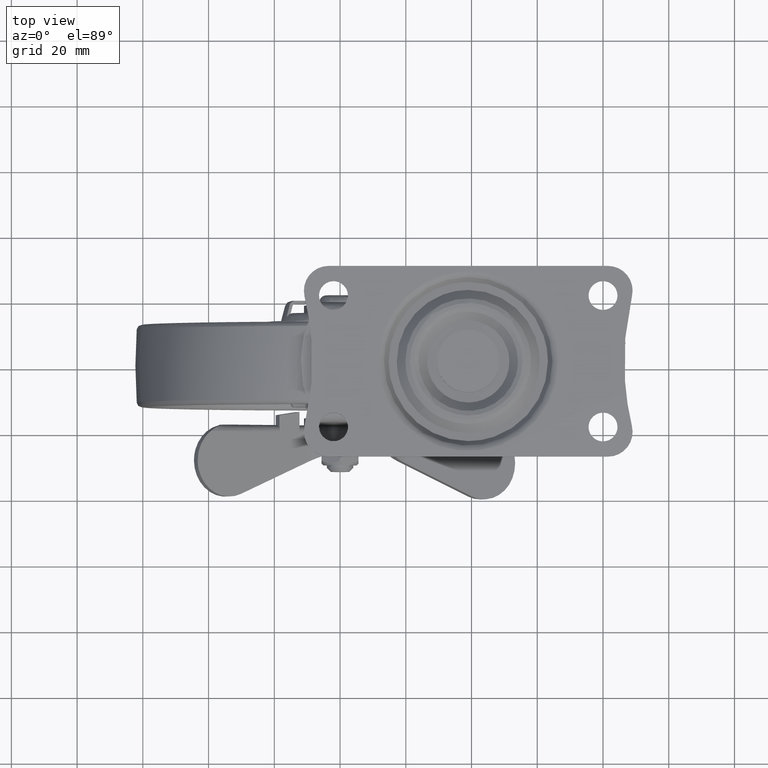
[diagram: clean part render]
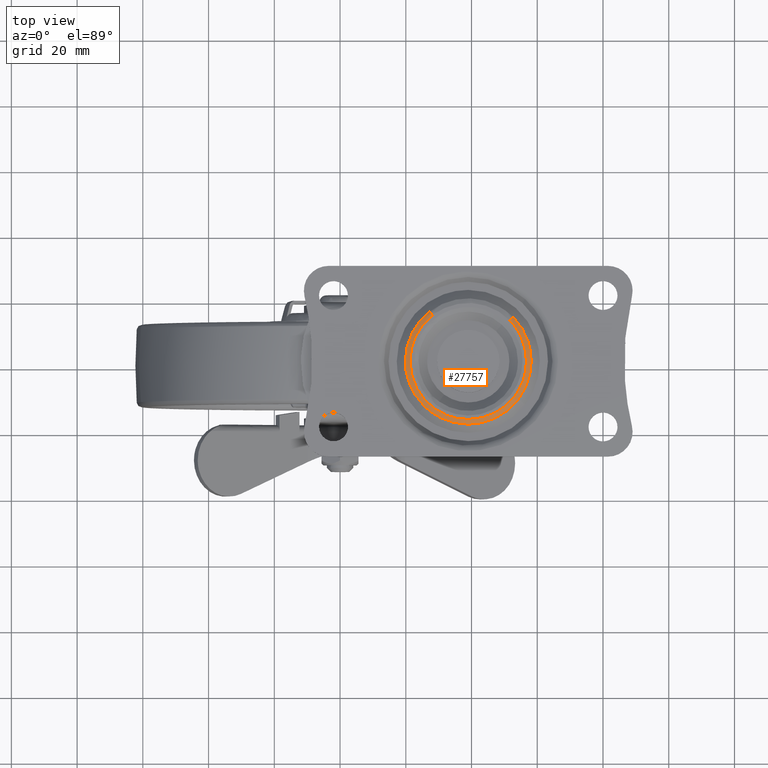
[diagram: same view with one face highlighted and labeled with its STEP entity id]
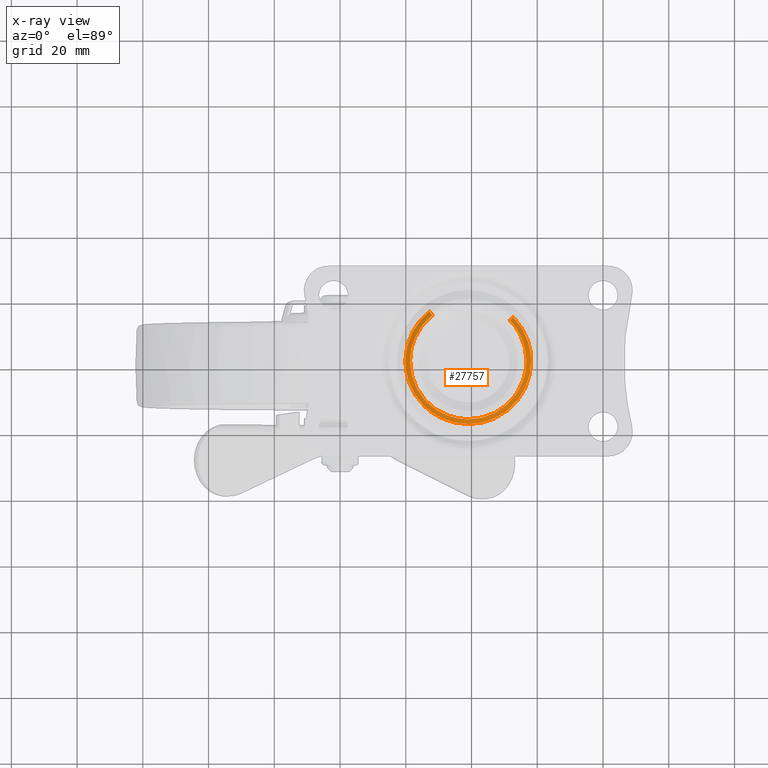
[diagram: x-ray of the same camera — body ghosted, the highlighted face saturated]
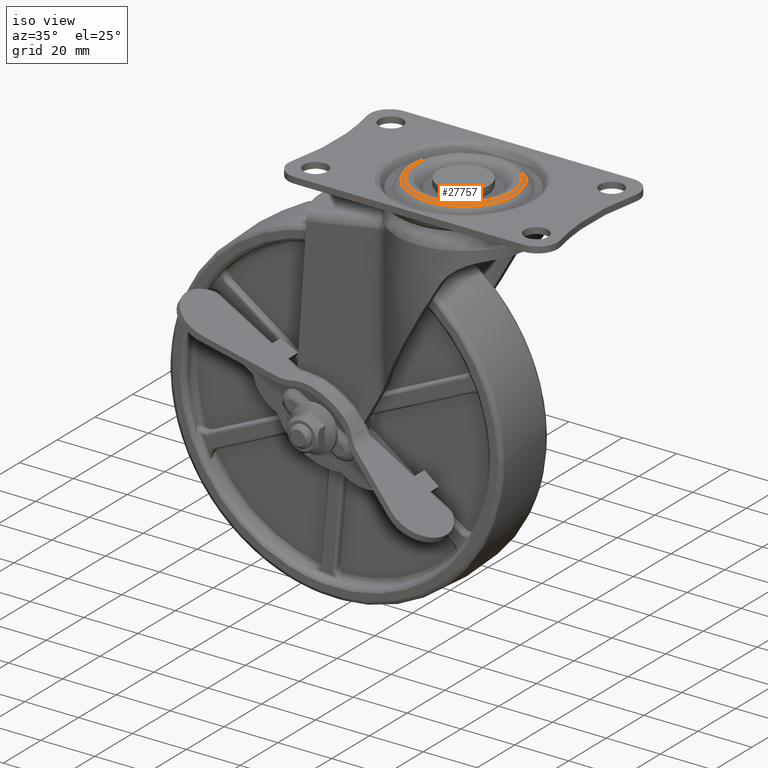
[diagram: same view with one face highlighted and labeled with its STEP entity id]
A machine part, top view. The second image highlights one B-rep face of the part: STEP entity #27757.
The next image is the same camera in x-ray: the body ghosted, the highlighted face saturated — about 0% of this face is hidden behind the body in this view.
A second angle (iso view) of the same face is appended — the face is thin or edge-on in the first view.
In plain terms, the highlighted face is a freeform B-spline surface patch.
Its self-contained STEP definition (entity closure, byte-faithful):
#21678=CARTESIAN_POINT('',(54.235827512268258,-11.577032608832861,84.914213838557146));
#21679=VERTEX_POINT('',#21678);
#21680=CARTESIAN_POINT('',(38.999997706684589,-19.135259489190961,84.914213562373206));
#21681=VERTEX_POINT('',#21680);
#21682=CARTESIAN_POINT('',(54.235827512268258,-11.577032608832861,84.914213838557146));
#21683=CARTESIAN_POINT('',(53.458493811959322,-12.600367417365280,84.914213824466117));
#21684=CARTESIAN_POINT('',(52.011063093121962,-14.151959352572540,84.914213798228431));
#21685=CARTESIAN_POINT('',(49.457490880639760,-16.112605137612139,84.914213751938959));
#21686=CARTESIAN_POINT('',(47.117436847519507,-17.402140315406090,84.914213709520070));
#21687=CARTESIAN_POINT('',(43.589116629507807,-18.729518901961939,84.914213645561333));
#21688=CARTESIAN_POINT('',(40.927772856962967,-19.136272792333369,84.914213597318010));
#21689=CARTESIAN_POINT('',(38.999997706684589,-19.135259489190961,84.914213562373206));
#21690=B_SPLINE_CURVE_WITH_KNOTS('',3,(#21682,#21683,#21684,#21685,#21686,#21687,#21688,#21689),.UNSPECIFIED.,.F.,.U.,(4,1,1,1,1,4),(0.000000027002983,3.855255121269471,6.333666453986231,9.638142871251180,11.841146862568070,17.624058223465092),.UNSPECIFIED.);
#21691=EDGE_CURVE('',#21679,#21681,#21690,.T.);
#21693=CARTESIAN_POINT('',(25.741204515669210,-13.797192863394370,84.914213275935722));
#21694=VERTEX_POINT('',#21693);
#21695=CARTESIAN_POINT('',(38.999997706684589,-19.135259489190961,84.914213562373206));
#21696=CARTESIAN_POINT('',(37.855616660017667,-19.135345182906420,84.914213537650568));
#21697=CARTESIAN_POINT('',(35.490569319793778,-18.922525315177410,84.914213486556946));
#21698=CARTESIAN_POINT('',(32.318903236390703,-18.027325014144960,84.914213418037676));
#21699=CARTESIAN_POINT('',(28.932020141682891,-16.422180718028990,84.914213344868799));
#21700=CARTESIAN_POINT('',(26.896107544427188,-14.907702343721541,84.914213300886004));
#21701=CARTESIAN_POINT('',(25.741204515669210,-13.797192863394370,84.914213275935722));
#21702=B_SPLINE_CURVE_WITH_KNOTS('',3,(#21695,#21696,#21697,#21698,#21699,#21700,#21701),.UNSPECIFIED.,.F.,.U.,(4,1,1,1,4),(0.000000048938961,3.433160163141071,7.095226976620060,9.841724821011081,14.648153466539929),.UNSPECIFIED.);
#21703=EDGE_CURVE('',#21681,#21694,#21702,.T.);
#21767=CARTESIAN_POINT('',(58.135259489191100,0.0,84.914213562373206));
#21768=VERTEX_POINT('',#21767);
#21769=CARTESIAN_POINT('',(58.135259489191100,0.0,84.914213562373206));
#21770=CARTESIAN_POINT('',(58.135332013141728,-1.100901983525066,84.914213588636514));
#21771=CARTESIAN_POINT('',(57.939136007509560,-3.367423828447721,84.914213642707082));
#21772=CARTESIAN_POINT('',(56.853503295950297,-7.385284188652244,84.914213738558090));
#21773=CARTESIAN_POINT('',(55.372754239362777,-10.082142269817110,84.914213802894807));
#21774=CARTESIAN_POINT('',(54.235827512268258,-11.577032608832861,84.914213838557146));
#21775=B_SPLINE_CURVE_WITH_KNOTS('',3,(#21769,#21770,#21771,#21772,#21773,#21774),.UNSPECIFIED.,.F.,.U.,(4,1,1,4),(0.000000040276058,3.302715218714768,6.799695285449415,12.433744203432781),.UNSPECIFIED.);
#21776=EDGE_CURVE('',#21768,#21679,#21775,.T.);
#21834=CARTESIAN_POINT('',(19.864740510808900,0.0,84.914213562373206));
#21835=VERTEX_POINT('',#21834);
#21836=CARTESIAN_POINT('',(25.741204515669210,-13.797192863394370,84.914213275935722));
#21837=CARTESIAN_POINT('',(25.104635771652621,-13.185501184518261,84.914213288634727));
#21838=CARTESIAN_POINT('',(23.754279732732151,-11.694944886279339,84.914213319579630));
#21839=CARTESIAN_POINT('',(21.947113757825029,-8.929756586255618,84.914213376986382));
#21840=CARTESIAN_POINT('',(20.321420380851428,-4.975590179828902,84.914213459077189));
#21841=CARTESIAN_POINT('',(19.863905135884430,-1.846044273108073,84.914213524048307));
#21842=CARTESIAN_POINT('',(19.864740510808900,0.0,84.914213562373206));
#21843=B_SPLINE_CURVE_WITH_KNOTS('',3,(#21836,#21837,#21838,#21839,#21840,#21841,#21842),.UNSPECIFIED.,.F.,.U.,(4,1,1,1,4),(0.000000051744001,2.648516480794813,6.019395334939915,9.871770985136518,15.409629194397590),.UNSPECIFIED.);
#21844=EDGE_CURVE('',#21694,#21835,#21843,.T.);
#21846=CARTESIAN_POINT('',(27.216632078942698,15.076816506009219,84.914213567593961));
#21847=VERTEX_POINT('',#21846);
#21848=CARTESIAN_POINT('',(19.864740510808900,0.0,84.914213562373206));
#21849=CARTESIAN_POINT('',(19.864347842727820,1.537424750881107,84.914213562372822));
#21850=CARTESIAN_POINT('',(20.182602629727800,4.159836222254341,84.914213562599215));
#21851=CARTESIAN_POINT('',(21.316598310730139,7.512996623801735,84.914213563403663));
#21852=CARTESIAN_POINT('',(22.745680036389981,10.244229452122161,84.914213564419782));
#21853=CARTESIAN_POINT('',(24.637692916043569,12.795986939122169,84.914213565761841));
#21854=CARTESIAN_POINT('',(26.290260222203461,14.352942479618740,84.914213566936795));
#21855=CARTESIAN_POINT('',(27.216632078942698,15.076816506009219,84.914213567593961));
#21856=B_SPLINE_CURVE_WITH_KNOTS('',3,(#21848,#21849,#21850,#21851,#21852,#21853,#21854,#21855),.UNSPECIFIED.,.F.,.U.,(4,1,1,1,1,4),(0.000000040513353,4.612193825910689,7.867887701682898,10.580879335673750,13.836586327887771,17.363550506907480),.UNSPECIFIED.);
#21857=EDGE_CURVE('',#21835,#21847,#21856,.T.);
#21859=CARTESIAN_POINT('',(52.615419818519470,13.445389501495431,84.914213563345726));
#21860=VERTEX_POINT('',#21859);
#21875=CARTESIAN_POINT('',(52.615419818519470,13.445389501495431,84.914213563345726));
#21876=CARTESIAN_POINT('',(53.980288145021063,12.064775234230940,84.914213563105221));
#21877=CARTESIAN_POINT('',(55.683909094096741,9.710269502037804,84.914213562805273));
#21878=CARTESIAN_POINT('',(57.114481179729403,6.342212270710096,84.914213562552888));
#21879=CARTESIAN_POINT('',(57.917419722598737,3.416475667768454,84.914213562411689));
#21880=CARTESIAN_POINT('',(58.135451196979183,1.320049374595035,84.914213562373632));
#21881=CARTESIAN_POINT('',(58.135259489191100,0.0,84.914213562373206));
#21882=B_SPLINE_CURVE_WITH_KNOTS('',3,(#21875,#21876,#21877,#21878,#21879,#21880,#21881),.UNSPECIFIED.,.F.,.U.,(4,1,1,1,4),(0.000000053390382,5.823720206695185,8.619058679654991,10.948545188600511,14.908659331608600),.UNSPECIFIED.);
#21883=EDGE_CURVE('',#21860,#21768,#21882,.T.);
#27638=CARTESIAN_POINT('',(27.184127558299146,15.118402519407013,84.859383688235198));
#27639=CARTESIAN_POINT('',(26.308382412942461,14.433958980105121,84.859383688235226));
#27640=CARTESIAN_POINT('',(25.517523225171960,13.652976097304952,84.859383688235226));
#27641=CARTESIAN_POINT('',(11.864547127867013,0.170499322476898,84.859383688235241));
#27642=CARTESIAN_POINT('',(25.347023902695057,-13.482476774828045,84.859383688235226));
#27643=CARTESIAN_POINT('',(38.829500677523093,-27.135452872132991,84.859383688235241));
#27644=CARTESIAN_POINT('',(52.482476774828051,-13.652976097304952,84.859383688235226));
#27645=CARTESIAN_POINT('',(66.135452872132987,-0.170499322476901,84.859383688235241));
#27646=CARTESIAN_POINT('',(52.652976097304951,13.482476774828045,84.859383688235226));
#27647=CARTESIAN_POINT('',(27.568829676558991,14.626176363224532,85.533564176436457));
#27648=CARTESIAN_POINT('',(26.721597111558662,13.964016991316788,85.533564176436471));
#27649=CARTESIAN_POINT('',(25.956486780360688,13.208461411563452,85.533564176436471));
#27650=CARTESIAN_POINT('',(12.748025368797236,0.164948191924130,85.533564176436471));
#27651=CARTESIAN_POINT('',(25.791538588436556,-13.043513219639314,85.533564176436471));
#27652=CARTESIAN_POINT('',(38.835051808075868,-26.251974631202764,85.533564176436471));
#27653=CARTESIAN_POINT('',(52.043513219639316,-13.208461411563452,85.533564176436471));
#27654=CARTESIAN_POINT('',(65.251974631202771,-0.164948191924133,85.533564176436471));
#27655=CARTESIAN_POINT('',(52.208461411563462,13.043513219639314,85.533564176436471));
#27656=CARTESIAN_POINT('',(28.134413692696043,13.902511914687908,85.498548095708557));
#27657=CARTESIAN_POINT('',(27.329099949929716,13.273114433845537,85.498548095708557));
#27658=CARTESIAN_POINT('',(26.601845250452968,12.554941742031097,85.498548095708543));
#27659=CARTESIAN_POINT('',(14.046903508421872,0.156786992484062,85.498548095708571));
#27660=CARTESIAN_POINT('',(26.445058257968906,-12.398154749547038,85.498548095708543));
#27661=CARTESIAN_POINT('',(38.843213007515942,-24.953096491578137,85.498548095708571));
#27662=CARTESIAN_POINT('',(51.398154749547032,-12.554941742031097,85.498548095708543));
#27663=CARTESIAN_POINT('',(63.953096491578158,-0.156786992484065,85.498548095708571));
#27664=CARTESIAN_POINT('',(51.554941742031104,12.398154749547038,85.498548095708543));
#27672=(BOUNDED_SURFACE()B_SPLINE_SURFACE(2,2,((#27638,#27647,#27656),(#27639,#27648,#27657),(#27640,#27649,#27658),(#27641,#27650,#27659),(#27642,#27651,#27660),(#27643,#27652,#27661),(#27644,#27653,#27662),(#27645,#27654,#27663),(#27646,#27655,#27664)),.UNSPECIFIED.,.F.,.F.,.U.)B_SPLINE_SURFACE_WITH_KNOTS((3,2,2,2,3),(3,3),(0.0,2.543340621310880,34.335128706708652,66.126916792106428,97.918704877504197),(0.0,1.750270681291906),.UNSPECIFIED.)GEOMETRIC_REPRESENTATION_ITEM()RATIONAL_B_SPLINE_SURFACE(((0.891241310293048,0.809265816973496,0.890026819093157),(0.909573455636510,0.825911789738577,0.908333983290731),(0.931397434223876,0.845728420382987,0.930128222424107),(0.658597441719454,0.598020301094997,0.657699973449076),(0.931397434223876,0.845728420382987,0.930128222424107),(0.658597441719454,0.598020301094997,0.657699973449076),(0.931397434223876,0.845728420382987,0.930128222424107),(0.658597441719454,0.598020301094997,0.657699973449076),(0.931397434223876,0.845728420382987,0.930128222424107)))REPRESENTATION_ITEM('')SURFACE());
#27673=CARTESIAN_POINT('',(28.087495547287791,13.962546901071960,85.500000000000000));
#27674=VERTEX_POINT('',#27673);
#27675=CARTESIAN_POINT('',(21.278954073182000,0.0,85.500000000000000));
#27676=VERTEX_POINT('',#27675);
#27677=CARTESIAN_POINT('',(28.087495547287791,13.962546901071960,85.500000000000000));
#27678=CARTESIAN_POINT('',(26.701127561314241,12.880116629627469,85.500000000000085));
#27679=CARTESIAN_POINT('',(24.780050810407040,10.850860588930241,85.500000000000028));
#27680=CARTESIAN_POINT('',(23.054138959600809,7.867917421648357,85.500000000000000));
#27681=CARTESIAN_POINT('',(22.051452815236001,5.377868957133530,85.499999999999886));
#27682=CARTESIAN_POINT('',(21.429459795742630,2.847531656615396,85.499999999999801));
#27683=CARTESIAN_POINT('',(21.278905196438711,0.921257026397598,85.500000000000341));
#27684=CARTESIAN_POINT('',(21.278954073182000,0.0,85.500000000000000));
#27685=B_SPLINE_CURVE_WITH_KNOTS('',3,(#27677,#27678,#27679,#27680,#27681,#27682,#27683,#27684),.UNSPECIFIED.,.F.,.U.,(4,1,1,1,1,4),(0.000000052701122,5.276342197613323,8.291374469731206,10.301412149106181,13.316480751209051,16.080277159892891),.UNSPECIFIED.);
#27686=EDGE_CURVE('',#27674,#27676,#27685,.T.);
#27687=ORIENTED_EDGE('',*,*,#27686,.F.);
#27688=CARTESIAN_POINT('',(27.216632078942698,15.076816506009219,84.914213567593961));
#27689=CARTESIAN_POINT('',(27.337611287497090,14.922023636992250,85.111194679795929));
#27690=CARTESIAN_POINT('',(27.614013667948530,14.568366855714791,85.402348079989039));
#27691=CARTESIAN_POINT('',(27.936331959103128,14.155960677086540,85.500194632447460));
#27692=CARTESIAN_POINT('',(28.087495547287791,13.962546901071960,85.500000000000000));
#27693=B_SPLINE_CURVE_WITH_KNOTS('',3,(#27688,#27689,#27690,#27691,#27692),.UNSPECIFIED.,.F.,.U.,(4,1,4),(0.000000140925419,0.834466119932772,1.570835716674206),.UNSPECIFIED.);
#27694=EDGE_CURVE('',#21847,#27674,#27693,.T.);
#27695=ORIENTED_EDGE('',*,*,#27694,.F.);
#27696=ORIENTED_EDGE('',*,*,#21857,.F.);
#27697=ORIENTED_EDGE('',*,*,#21844,.F.);
#27698=ORIENTED_EDGE('',*,*,#21703,.F.);
#27699=ORIENTED_EDGE('',*,*,#21691,.F.);
#27700=ORIENTED_EDGE('',*,*,#21776,.F.);
#27701=ORIENTED_EDGE('',*,*,#21883,.F.);
#27702=CARTESIAN_POINT('',(51.609156416499403,12.451692387356671,85.500000000000000));
#27703=VERTEX_POINT('',#27702);
#27704=CARTESIAN_POINT('',(52.615419818519470,13.445389501495431,84.914213563345726));
#27705=CARTESIAN_POINT('',(52.516660670885997,13.347863665017281,85.053100339601571));
#27706=CARTESIAN_POINT('',(52.214114832461973,13.049096040223301,85.368401324276647));
#27707=CARTESIAN_POINT('',(51.842129431011777,12.681756018535660,85.500757551416385));
#27708=CARTESIAN_POINT('',(51.609156416499403,12.451692387356671,85.500000000000000));
#27709=B_SPLINE_CURVE_WITH_KNOTS('',3,(#27704,#27705,#27706,#27707,#27708),.UNSPECIFIED.,.F.,.U.,(4,1,4),(0.000000140924397,0.589080086652787,1.570835739411453),.UNSPECIFIED.);
#27710=EDGE_CURVE('',#21860,#27703,#27709,.T.);
#27711=ORIENTED_EDGE('',*,*,#27710,.T.);
#27712=CARTESIAN_POINT('',(56.721045926818000,0.0,85.500000000000000));
#27713=VERTEX_POINT('',#27712);
#27714=CARTESIAN_POINT('',(56.721045926818000,0.0,85.500000000000000));
#27715=CARTESIAN_POINT('',(56.721656785377817,1.654016715846789,85.500000000000057));
#27716=CARTESIAN_POINT('',(56.366028703807302,4.170460302203151,85.499999999999829));
#27717=CARTESIAN_POINT('',(55.119408091681727,7.553244898070698,85.500000000000099));
#27718=CARTESIAN_POINT('',(53.655101610079292,10.126365980311091,85.500000000000057));
#27719=CARTESIAN_POINT('',(52.316587013989007,11.735402240372700,85.499999999999673));
#27720=CARTESIAN_POINT('',(51.609156416499403,12.451692387356671,85.500000000000000));
#27721=B_SPLINE_CURVE_WITH_KNOTS('',3,(#27714,#27715,#27716,#27717,#27718,#27719,#27720),.UNSPECIFIED.,.F.,.U.,(4,1,1,1,4),(0.000000058864529,4.961828929400031,7.550564883309331,10.786577961285939,13.806817560565211),.UNSPECIFIED.);
#27722=EDGE_CURVE('',#27713,#27703,#27721,.T.);
#27723=ORIENTED_EDGE('',*,*,#27722,.F.);
#27724=CARTESIAN_POINT('',(39.000002392413322,-17.721045926817840,85.500000000000000));
#27725=VERTEX_POINT('',#27724);
#27726=CARTESIAN_POINT('',(39.000002392413322,-17.721045926817840,85.500000000000000));
#27727=CARTESIAN_POINT('',(40.667375621687732,-17.721776828862179,85.500000000000028));
#27728=CARTESIAN_POINT('',(43.131598979714042,-17.370458177838941,85.499999999999986));
#27729=CARTESIAN_POINT('',(46.612756101863972,-16.100739134629681,85.499999999999957));
#27730=CARTESIAN_POINT('',(49.393356074335593,-14.503070793070330,85.500000000000128));
#27731=CARTESIAN_POINT('',(51.848793828892703,-12.331709010395510,85.499999999999517));
#27732=CARTESIAN_POINT('',(53.574615968218268,-10.175169389758009,85.500000000000114));
#27733=CARTESIAN_POINT('',(54.844132641674328,-8.057161255699260,85.499999999999929));
#27734=CARTESIAN_POINT('',(55.760551988803847,-5.919308721000628,85.500000000000298));
#27735=CARTESIAN_POINT('',(56.516000806365888,-3.189462635135326,85.499999999999702));
#27736=CARTESIAN_POINT('',(56.721257983242687,-1.232336304440683,85.500000000000156));
#27737=CARTESIAN_POINT('',(56.721045926818000,0.0,85.500000000000000));
#27738=B_SPLINE_CURVE_WITH_KNOTS('',3,(#27726,#27727,#27728,#27729,#27730,#27731,#27732,#27733,#27734,#27735,#27736,#27737),.UNSPECIFIED.,.F.,.U.,(4,1,1,1,1,1,1,1,1,4),(0.000000200834098,5.001840702271615,7.394031129254906,11.091093756363399,14.570487630886030,17.180216871035601,19.354945010771001,21.964618639865432,24.139359487873069,27.836327160453120),.UNSPECIFIED.);
#27739=EDGE_CURVE('',#27725,#27713,#27738,.T.);
#27740=ORIENTED_EDGE('',*,*,#27739,.F.);
#27741=CARTESIAN_POINT('',(21.278954073182000,0.0,85.500000000000000));
#27742=CARTESIAN_POINT('',(21.278213321850110,-1.667380662279474,85.500000000000128));
#27743=CARTESIAN_POINT('',(21.619233002444911,-4.059102850270909,85.500000000000071));
#27744=CARTESIAN_POINT('',(22.867012535442189,-7.546638034149234,85.499999999999901));
#27745=CARTESIAN_POINT('',(24.448631224932679,-10.338822610882961,85.500000000000355));
#27746=CARTESIAN_POINT('',(26.668325994525830,-12.848751099113290,85.499999999999858));
#27747=CARTESIAN_POINT('',(29.165268637544258,-14.847221056056680,85.499999999999929));
#27748=CARTESIAN_POINT('',(31.781590108408491,-16.287285957336501,85.500000000000213));
#27749=CARTESIAN_POINT('',(35.158217211447749,-17.425697114489310,85.499999999999972));
#27750=CARTESIAN_POINT('',(37.550157055686967,-17.721447388105961,85.499999999999901));
#27751=CARTESIAN_POINT('',(39.000002392413322,-17.721045926817840,85.500000000000000));
#27752=B_SPLINE_CURVE_WITH_KNOTS('',3,(#27741,#27742,#27743,#27744,#27745,#27746,#27747,#27748,#27749,#27750,#27751),.UNSPECIFIED.,.F.,.U.,(4,1,1,1,1,1,1,1,4),(0.000000199987412,5.001841186437481,7.176556461435869,11.091094829795351,14.570489043104249,17.180218537267429,20.659772888664929,23.486910286044210,27.836329857277391),.UNSPECIFIED.);
#27753=EDGE_CURVE('',#27676,#27725,#27752,.T.);
#27754=ORIENTED_EDGE('',*,*,#27753,.F.);
#27755=EDGE_LOOP('',(#27687,#27695,#27696,#27697,#27698,#27699,#27700,#27701,#27711,#27723,#27740,#27754));
#27756=FACE_OUTER_BOUND('',#27755,.T.);
#27757=ADVANCED_FACE('',(#27756),#27672,.T.);